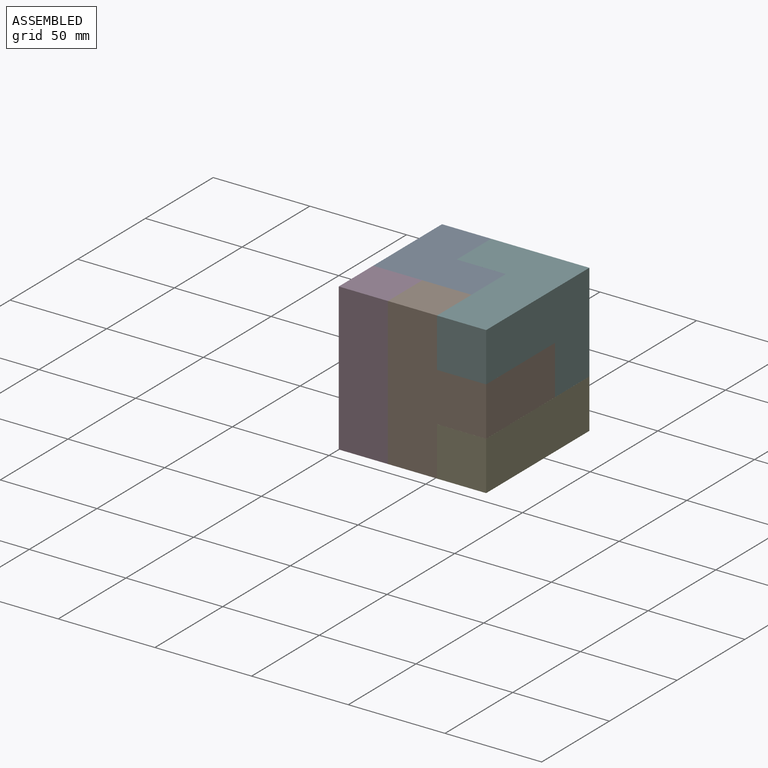
[diagram: assembled view]
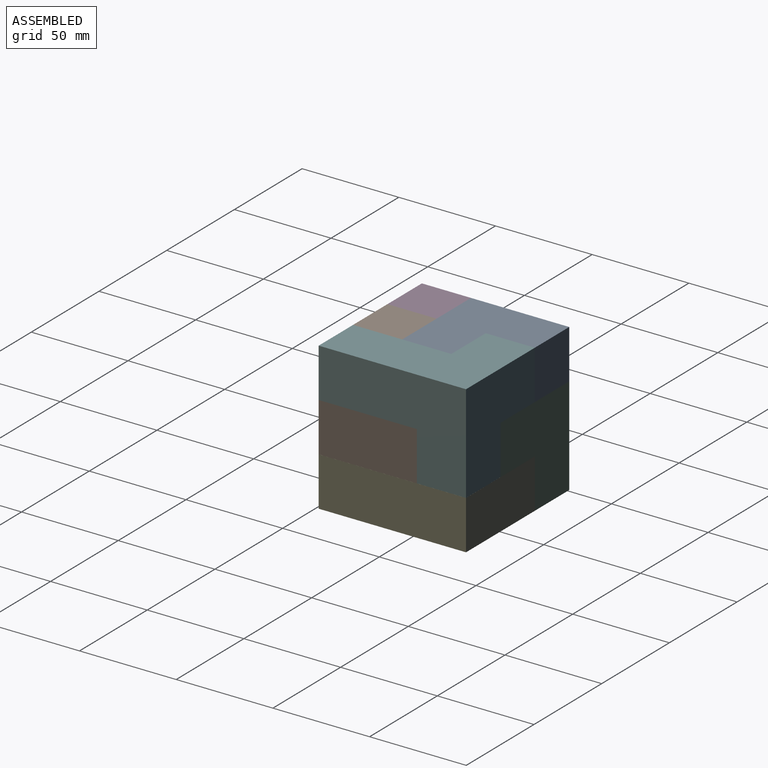
[diagram: assembled view, second angle]
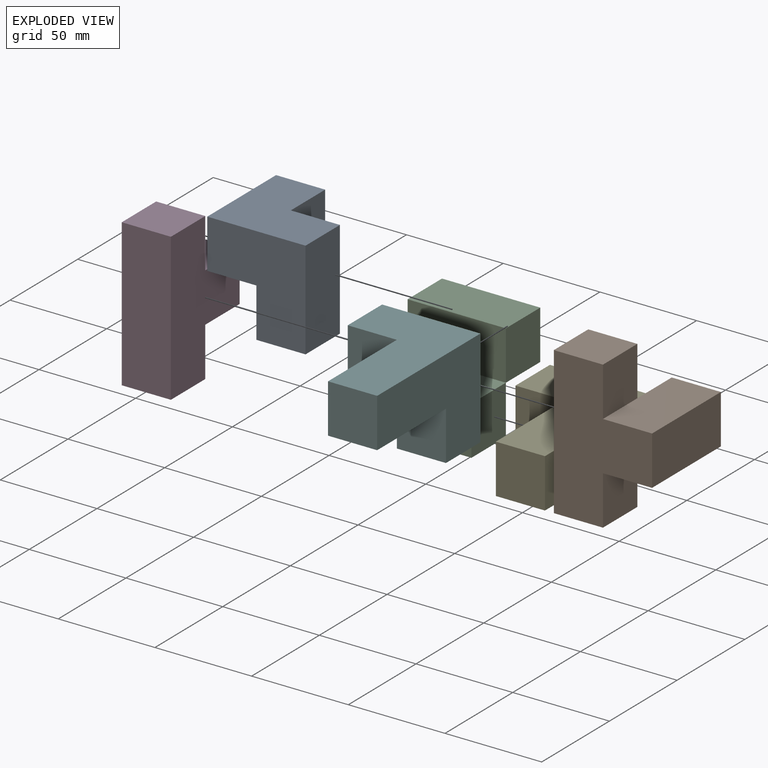
[diagram: exploded view]
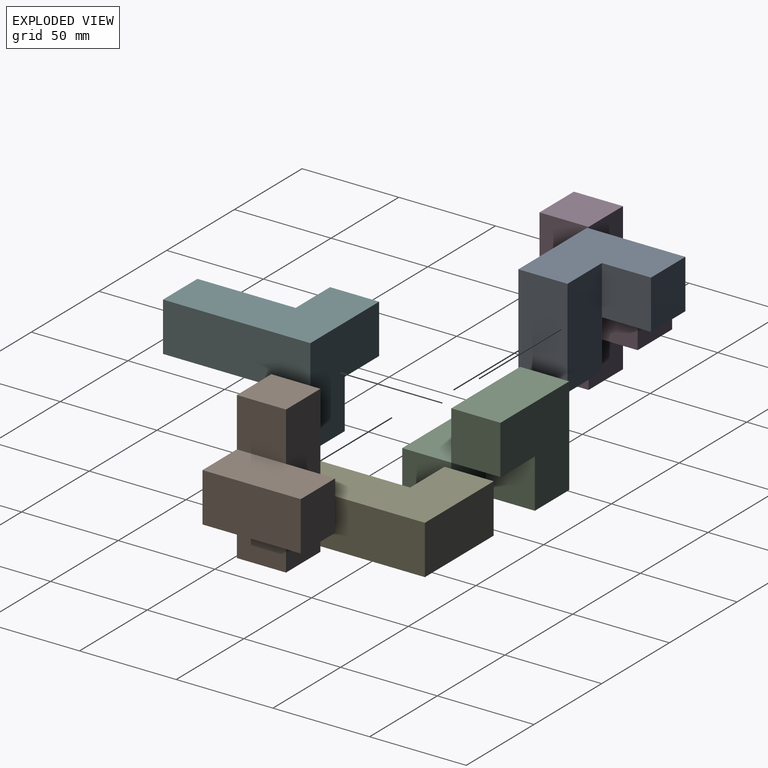
[diagram: exploded view, second angle]
ASSEMBLY  parts=6 mates=5
PART A: 10 faces, bbox 50.8x50.8x50.8 mm
  f0: plane 50.8x25.4mm, normal (0,1,0), area 1290.3mm2, adj f1,f5,f6,f7,f8
  f1: plane 25.4x25.4mm, normal (1,0,0), area 645.2mm2, adj f0,f2,f6,f9
  f2: plane 25.4x25.4mm, normal (0,1,0), area 645.2mm2, adj f1,f3,f6,f9
  f3: plane 50.8x25.4mm, normal (-1,0,0), area 1290.3mm2, adj f2,f4,f6,f9
  f4: plane 50.8x50.8mm, normal (0,-1,0), area 1935.5mm2, adj f3,f5,f6,f7,f8,f9
  f5: plane 50.8x25.4mm, normal (1,0,0), area 1290.3mm2, adj f0,f4,f6,f7
  f6: plane 50.8x50.8mm, normal (0,0,1), area 1935.5mm2, adj f0,f1,f2,f3,f4,f5
  f7: plane 25.4x25.4mm, normal (0,0,-1), area 645.2mm2, adj f0,f4,f5,f8
  f8: plane 25.4x25.4mm, normal (-1,0,0), area 645.2mm2, adj f0,f4,f7,f9
  f9: plane 50.8x25.4mm, normal (0,0,-1), area 1290.3mm2, adj f1,f2,f3,f4,f8
PART B: 12 faces, bbox 76.2x50.8x50.8 mm
  f0: plane 25.4x25.4mm, normal (-1,0,0), area 645.2mm2, adj f1,f7,f8,f9
  f1: plane 76.2x25.4mm, normal (0,-1,0), area 1935.5mm2, adj f0,f2,f8,f9
  f2: plane 25.4x25.4mm, normal (1,0,0), area 645.2mm2, adj f1,f3,f8,f9
  f3: plane 25.4x25.4mm, normal (0,1,0), area 645.2mm2, adj f2,f4,f8,f9
  f4: plane 50.8x25.4mm, normal (1,0,0), area 1290.3mm2, adj f3,f5,f8,f10,f11
  f5: plane 50.8x25.4mm, normal (0,1,0), area 1290.3mm2, adj f4,f6,f8,f11
  f6: plane 50.8x25.4mm, normal (-1,0,0), area 1290.3mm2, adj f5,f7,f8,f10,f11
  f7: plane 25.4x25.4mm, normal (0,1,0), area 645.2mm2, adj f0,f6,f8,f9
  f8: plane 76.2x50.8mm, normal (0,0,1), area 2580.6mm2, adj f0,f1,f2,f3,f4,f5,f6,f7
  f9: plane 76.2x25.4mm, normal (0,0,-1), area 1935.5mm2, adj f0,f1,f2,f3,f7,f10
  f10: plane 25.4x25.4mm, normal (0,-1,0), area 645.2mm2, adj f4,f6,f9,f11
  f11: plane 25.4x25.4mm, normal (0,0,-1), area 645.2mm2, adj f4,f5,f6,f10
PART C: 11 faces, bbox 50.8x50.8x50.8 mm
  f0: plane 50.8x50.8mm, normal (-1,0,0), area 1936.1mm2, adj f2,f4,f5,f7,f8,f10
  f1: plane 50.8x25.4mm, normal (0,0,1), area 1290.3mm2, adj f2,f3,f4,f6
  f2: plane 50.8x50.8mm, normal (0,-1,0), area 1935.5mm2, adj f0,f1,f3,f5,f6,f7
  f3: plane 50.8x25.4mm, normal (1,0,0), area 1290.3mm2, adj f1,f2,f4,f5
  f4: plane 50.8x50.8mm, normal (0,1,0), area 1291mm2, adj f0,f1,f3,f5,f6,f7,f9,f10
  f5: plane 50.8x50.8mm, normal (0,0,-1), area 1935.5mm2, adj f0,f2,f3,f4,f8,f9
  f6: plane 50.8x25.4mm, normal (1,0,0), area 1290.3mm2, adj f1,f2,f4,f7
  f7: plane 50.8x25.4mm, normal (0,0,1), area 1290.3mm2, adj f0,f2,f4,f6
  f8: plane 25.4x25.37mm, normal (0,1,0), area 644.5mm2, adj f0,f5,f9,f10
  f9: plane 25.4x25.37mm, normal (-1,0,0), area 644.5mm2, adj f4,f5,f8,f10
  f10: plane 25.4x25.4mm, normal (0,0,-1), area 645.2mm2, adj f0,f4,f8,f9
PART D: 10 faces, bbox 76.2x25.4x50.8 mm
  f0: plane 25.4x25.4mm, normal (0,0,1), area 645.2mm2, adj f1,f2,f3,f8
  f1: plane 76.2x50.8mm, normal (0,-1,0), area 2580.6mm2, adj f0,f2,f4,f5,f6,f7,f8,f9
  f2: plane 25.4x25.4mm, normal (1,0,0), area 645.2mm2, adj f0,f1,f3,f6
  f3: plane 76.2x50.8mm, normal (0,1,0), area 2580.6mm2, adj f0,f2,f4,f5,f6,f7,f8,f9
  f4: plane 25.4x25.4mm, normal (-1,0,0), area 645.2mm2, adj f1,f3,f5,f6
  f5: plane 25.4x25.4mm, normal (0,0,1), area 645.2mm2, adj f1,f3,f4,f7
  f6: plane 76.2x25.4mm, normal (0,0,-1), area 1935.5mm2, adj f1,f2,f3,f4
  f7: plane 25.4x25.4mm, normal (-1,0,0), area 645.2mm2, adj f1,f3,f5,f9
  f8: plane 25.4x25.4mm, normal (1,0,0), area 645.2mm2, adj f0,f1,f3,f9
  f9: plane 25.4x25.4mm, normal (0,0,1), area 645.2mm2, adj f1,f3,f7,f8
PART E: 8 faces, bbox 50.8x25.4x76.2 mm
  f0: plane 25.4x25.4mm, normal (0,0,1), area 645.2mm2, adj f1,f3,f4,f6
  f1: plane 76.2x50.8mm, normal (0,1,0), area 2580.6mm2, adj f0,f2,f4,f5,f6,f7
  f2: plane 76.2x25.4mm, normal (-1,0,0), area 1935.5mm2, adj f1,f3,f5,f7
  f3: plane 76.2x50.8mm, normal (0,-1,0), area 2580.6mm2, adj f0,f2,f4,f5,f6,f7
  f4: plane 25.4x25.4mm, normal (1,0,0), area 645.2mm2, adj f0,f1,f3,f5
  f5: plane 50.8x25.4mm, normal (0,0,-1), area 1290.3mm2, adj f1,f2,f3,f4
  f6: plane 50.8x25.4mm, normal (1,0,0), area 1290.3mm2, adj f0,f1,f3,f7
  f7: plane 25.4x25.4mm, normal (0,0,1), area 645.2mm2, adj f1,f2,f3,f6
PART F: 12 faces, bbox 50.8x50.8x76.2 mm
  f0: plane 25.4x25.4mm, normal (0,0,1), area 645.2mm2, adj f1,f5,f6,f9
  f1: plane 25.4x25.4mm, normal (0,1,0), area 645.2mm2, adj f0,f2,f6,f8
  f2: plane 25.4x25.4mm, normal (1,0,0), area 645.2mm2, adj f1,f3,f7,f8
  f3: plane 25.4x25.4mm, normal (0,1,0), area 645.2mm2, adj f2,f4,f7,f8
  f4: plane 76.2x50.8mm, normal (-1,0,0), area 2580.6mm2, adj f3,f5,f7,f8,f10,f11
  f5: plane 76.2x50.8mm, normal (0,-1,0), area 2580.6mm2, adj f0,f4,f6,f8,f9,f11
  f6: plane 25.4x25.4mm, normal (1,0,0), area 645.2mm2, adj f0,f1,f5,f8
  f7: plane 25.4x25.4mm, normal (0,0,1), area 645.2mm2, adj f2,f3,f4,f10
  f8: plane 50.8x50.8mm, normal (0,0,-1), area 1935.5mm2, adj f1,f2,f3,f4,f5,f6
  f9: plane 50.8x25.4mm, normal (1,0,0), area 1290.3mm2, adj f0,f5,f10,f11
  f10: plane 50.8x25.4mm, normal (0,1,0), area 1290.3mm2, adj f4,f7,f9,f11
  f11: plane 25.4x25.4mm, normal (0,0,1), area 645.2mm2, adj f4,f5,f9,f10
PLACE A rot(axis=(-0.03,0.15,0.99),0deg) t=(2.45,-70.88,20.94)mm
PLACE B rot(axis=(0.58,0.58,-0.58),120deg) t=(27.85,-70.88,71.74)mm
PLACE C rot(axis=(0,0,-1),90deg) t=(2.45,-20.08,-4.46)mm fixed
PLACE D rot(axis=(-0.58,0.58,0.58),120deg) t=(27.85,-96.28,71.74)mm
PLACE E rot(axis=(0,-0.71,0.71),180deg) t=(78.65,-20.08,20.92)mm
PLACE F rot(axis=(0,0.71,-0.71),180deg) t=(78.65,-20.08,71.74)mm
MATE fastened F.f7 <-> C.f6  axis (0,-1,0) through (53.25,-45.48,33.64)mm
MATE fastened D.f3 <-> C.f2  axis (-1,0,0) through (2.45,-45.48,33.64)mm
MATE fastened B.f5 <-> F.f4  axis (1,0,0) through (78.65,-45.48,33.64)mm
MATE fastened E.f4 <-> C.f8  axis (-1,0,0) through (27.85,-20.08,8.22)mm
MATE fastened A.f3 <-> D.f3  axis (-1,0,0) through (2.45,-45.48,46.34)mm
